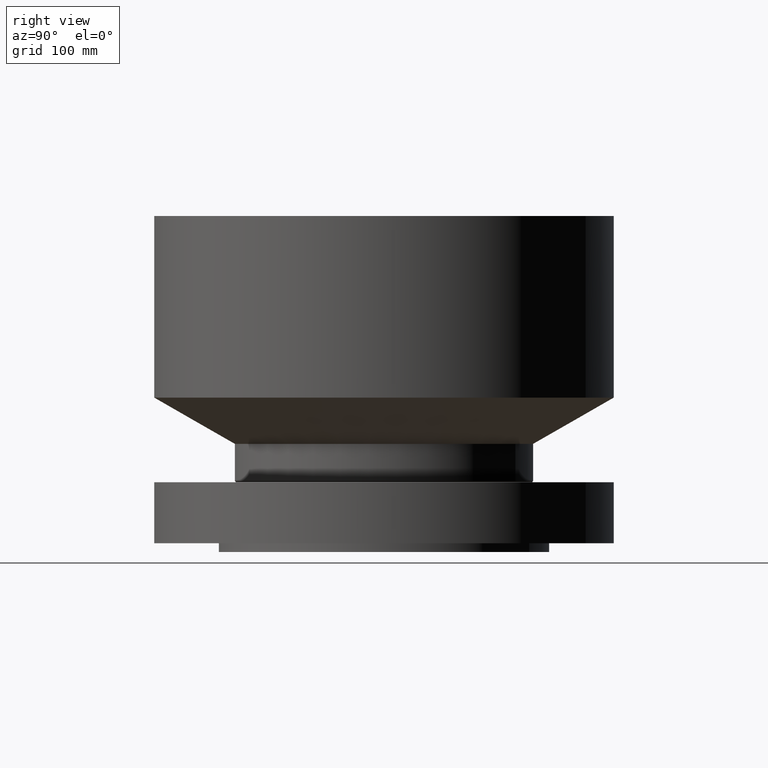
[diagram: clean part render]
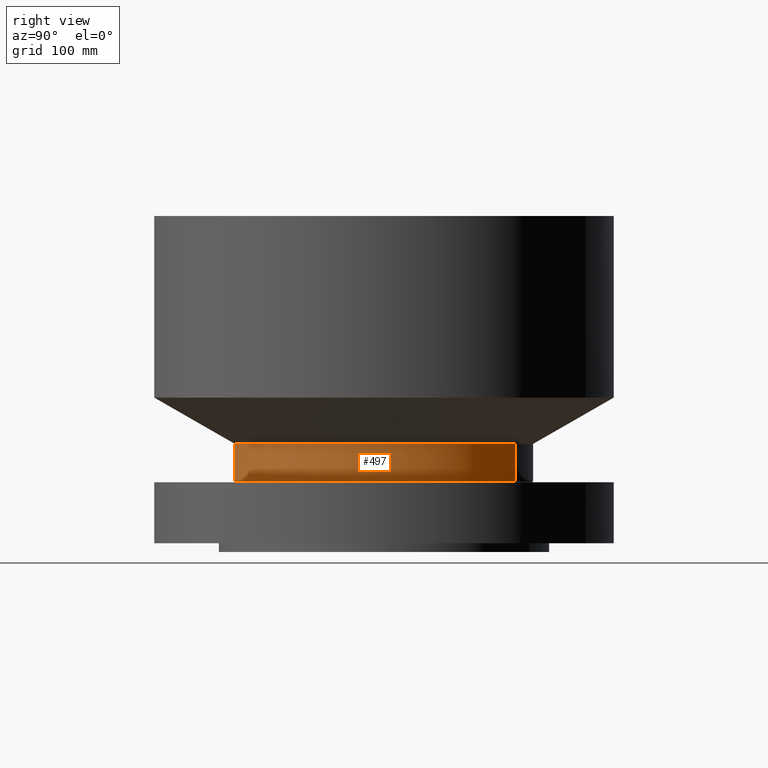
[diagram: same view with one face highlighted and labeled with its STEP entity id]
A machine part, right view. The second image highlights one B-rep face of the part: STEP entity #497.
In plain terms, the highlighted cylindrical surface (partial cylindrical patch) has radius 136.525 mm, axis along (0, 0, -1).
Its self-contained STEP definition (entity closure, byte-faithful):
#438=AXIS2_PLACEMENT_3D('Circle Axis2P3D',#436,#437,$) ;
#470=AXIS2_PLACEMENT_3D('Cylinder Axis2P3D',#467,#468,#469) ;
#481=AXIS2_PLACEMENT_3D('Circle Axis2P3D',#479,#480,$) ;
#433=CARTESIAN_POINT('Vertex',(2.57691227001,4.71700627018,2.23098076212)) ;
#436=CARTESIAN_POINT('Axis2P3D Location',(0.,0.,2.23098076212)) ;
#440=CARTESIAN_POINT('Vertex',(-2.57691227001,-4.71700627018,2.23098076212)) ;
#467=CARTESIAN_POINT('Axis2P3D Location',(0.,0.,5.71850000002)) ;
#472=CARTESIAN_POINT('Line Origine',(2.57691227001,4.71700627018,2.90049038107)) ;
#476=CARTESIAN_POINT('Vertex',(2.57691227001,4.71700627018,3.57000000001)) ;
#479=CARTESIAN_POINT('Axis2P3D Location',(0.,0.,3.57000000001)) ;
#483=CARTESIAN_POINT('Vertex',(-2.57691227001,-4.71700627018,3.57000000001)) ;
#486=CARTESIAN_POINT('Line Origine',(-2.57691227001,-4.71700627018,2.90049038107)) ;
#437=DIRECTION('Axis2P3D Direction',(-0.,0.,0.0393700787402)) ;
#468=DIRECTION('Axis2P3D Direction',(0.,0.,-0.0393700787402)) ;
#469=DIRECTION('Axis2P3D XDirection',(-0.0188750212049,-0.0345504945626,0.)) ;
#473=DIRECTION('Vector Direction',(0.,0.,-0.0393700787402)) ;
#480=DIRECTION('Axis2P3D Direction',(0.,0.,-0.0393700787402)) ;
#487=DIRECTION('Vector Direction',(0.,0.,-0.0393700787402)) ;
#474=VECTOR('Line Direction',#473,0.0393700787402) ;
#488=VECTOR('Line Direction',#487,0.0393700787402) ;
#492=ORIENTED_EDGE('',*,*,#442,.F.) ;
#493=ORIENTED_EDGE('',*,*,#478,.T.) ;
#494=ORIENTED_EDGE('',*,*,#485,.T.) ;
#495=ORIENTED_EDGE('',*,*,#490,.F.) ;
#497=ADVANCED_FACE('PartBody',(#496),#471,.T.) ;
#439=CIRCLE('generated circle',#438,5.37500000002) ;
#482=CIRCLE('generated circle',#481,5.37500000002) ;
#471=CYLINDRICAL_SURFACE('generated cylinder',#470,5.37500000002) ;
#442=EDGE_CURVE('',#434,#441,#439,.F.) ;
#478=EDGE_CURVE('',#434,#477,#475,.F.) ;
#485=EDGE_CURVE('',#477,#484,#482,.T.) ;
#490=EDGE_CURVE('',#441,#484,#489,.F.) ;
#491=EDGE_LOOP('',(#492,#493,#494,#495)) ;
#496=FACE_OUTER_BOUND('',#491,.T.) ;
#475=LINE('Line',#472,#474) ;
#489=LINE('Line',#486,#488) ;
#434=VERTEX_POINT('',#433) ;
#441=VERTEX_POINT('',#440) ;
#477=VERTEX_POINT('',#476) ;
#484=VERTEX_POINT('',#483) ;